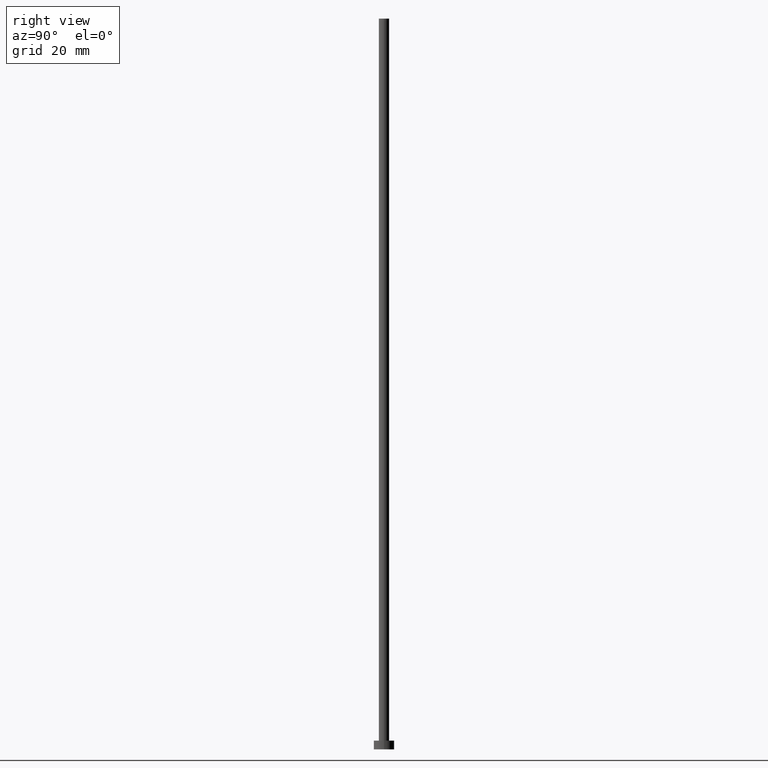
[diagram: clean part render]
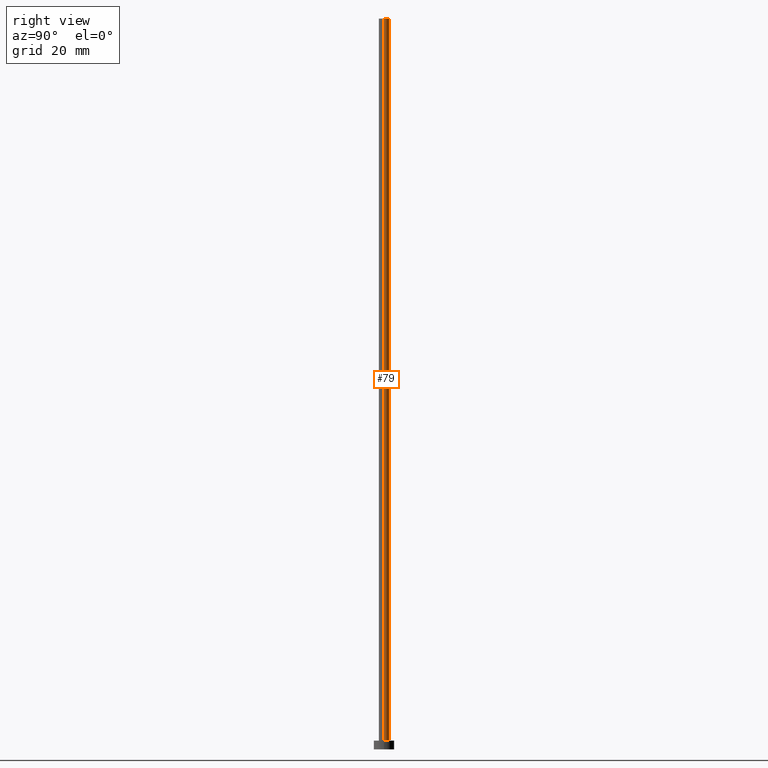
[diagram: same view with one face highlighted and labeled with its STEP entity id]
A machine part, right view. The second image highlights one B-rep face of the part: STEP entity #79.
In plain terms, the highlighted cylindrical surface (edge-blend (fillet) strip) has radius 1.75 mm, axis along (-0, -0, -1).
Its self-contained STEP definition (entity closure, byte-faithful):
#3 = CARTESIAN_POINT ( 'NONE',  ( 1.750000000000000000, 2.143131898507868297E-16, 250.0000000000000000 ) ) ;
#9 = CARTESIAN_POINT ( 'NONE',  ( -1.750000000000000000, 0.000000000000000000, 250.0000000000000000 ) ) ;
#10 = DIRECTION ( 'NONE',  ( 0.000000000000000000, 0.000000000000000000, 1.000000000000000000 ) ) ;
#20 = CARTESIAN_POINT ( 'NONE',  ( -1.750000000000000000, 0.000000000000000000, 3.000000000000000000 ) ) ;
#21 = DIRECTION ( 'NONE',  ( -1.000000000000000000, 0.000000000000000000, 0.000000000000000000 ) ) ;
#23 = CARTESIAN_POINT ( 'NONE',  ( 0.000000000000000000, 0.000000000000000000, 250.0000000000000000 ) ) ;
#39 = DIRECTION ( 'NONE',  ( 0.000000000000000000, 0.000000000000000000, 1.000000000000000000 ) ) ;
#40 = CARTESIAN_POINT ( 'NONE',  ( -1.750000000000000000, 0.000000000000000000, 250.0000000000000000 ) ) ;
#56 = DIRECTION ( 'NONE',  ( -0.000000000000000000, -0.000000000000000000, -1.000000000000000000 ) ) ;
#64 = ORIENTED_EDGE ( 'NONE', *, *, #140, .F. ) ;
#68 = EDGE_CURVE ( 'NONE', #71, #185, #180, .T. ) ;
#71 = VERTEX_POINT ( 'NONE', #130 ) ;
#75 = FACE_OUTER_BOUND ( 'NONE', #107, .T. ) ;
#76 = VERTEX_POINT ( 'NONE', #40 ) ;
#78 = CARTESIAN_POINT ( 'NONE',  ( 0.000000000000000000, 0.000000000000000000, 3.000000000000000000 ) ) ;
#79 = ADVANCED_FACE ( 'NONE', ( #75 ), #134, .T. ) ;
#84 = DIRECTION ( 'NONE',  ( 1.000000000000000000, 0.000000000000000000, 0.000000000000000000 ) ) ;
#90 = CARTESIAN_POINT ( 'NONE',  ( 1.750000000000000000, 2.143131898507868297E-16, 3.000000000000000000 ) ) ;
#107 = EDGE_LOOP ( 'NONE', ( #64, #243, #164, #220 ) ) ;
#116 = CIRCLE ( 'NONE', #138, 1.750000000000000000 ) ;
#130 = CARTESIAN_POINT ( 'NONE',  ( 1.750000000000000000, 2.143131898507868297E-16, 250.0000000000000000 ) ) ;
#134 = CYLINDRICAL_SURFACE ( 'NONE', #239, 1.750000000000000000 ) ;
#138 = AXIS2_PLACEMENT_3D ( 'NONE', #188, #10, #84 ) ;
#140 = EDGE_CURVE ( 'NONE', #71, #76, #116, .T. ) ;
#161 = EDGE_CURVE ( 'NONE', #185, #163, #219, .T. ) ;
#163 = VERTEX_POINT ( 'NONE', #20 ) ;
#164 = ORIENTED_EDGE ( 'NONE', *, *, #161, .T. ) ;
#168 = VECTOR ( 'NONE', #56, 1000.000000000000000 ) ;
#180 = LINE ( 'NONE', #3, #168 ) ;
#185 = VERTEX_POINT ( 'NONE', #90 ) ;
#186 = VECTOR ( 'NONE', #245, 1000.000000000000000 ) ;
#187 = LINE ( 'NONE', #9, #186 ) ;
#188 = CARTESIAN_POINT ( 'NONE',  ( 0.000000000000000000, 0.000000000000000000, 250.0000000000000000 ) ) ;
#193 = EDGE_CURVE ( 'NONE', #76, #163, #187, .T. ) ;
#197 = AXIS2_PLACEMENT_3D ( 'NONE', #78, #39, #227 ) ;
#202 = DIRECTION ( 'NONE',  ( -0.000000000000000000, -0.000000000000000000, -1.000000000000000000 ) ) ;
#219 = CIRCLE ( 'NONE', #197, 1.750000000000000000 ) ;
#220 = ORIENTED_EDGE ( 'NONE', *, *, #193, .F. ) ;
#227 = DIRECTION ( 'NONE',  ( 1.000000000000000000, 0.000000000000000000, 0.000000000000000000 ) ) ;
#239 = AXIS2_PLACEMENT_3D ( 'NONE', #23, #202, #21 ) ;
#243 = ORIENTED_EDGE ( 'NONE', *, *, #68, .T. ) ;
#245 = DIRECTION ( 'NONE',  ( -0.000000000000000000, -0.000000000000000000, -1.000000000000000000 ) ) ;